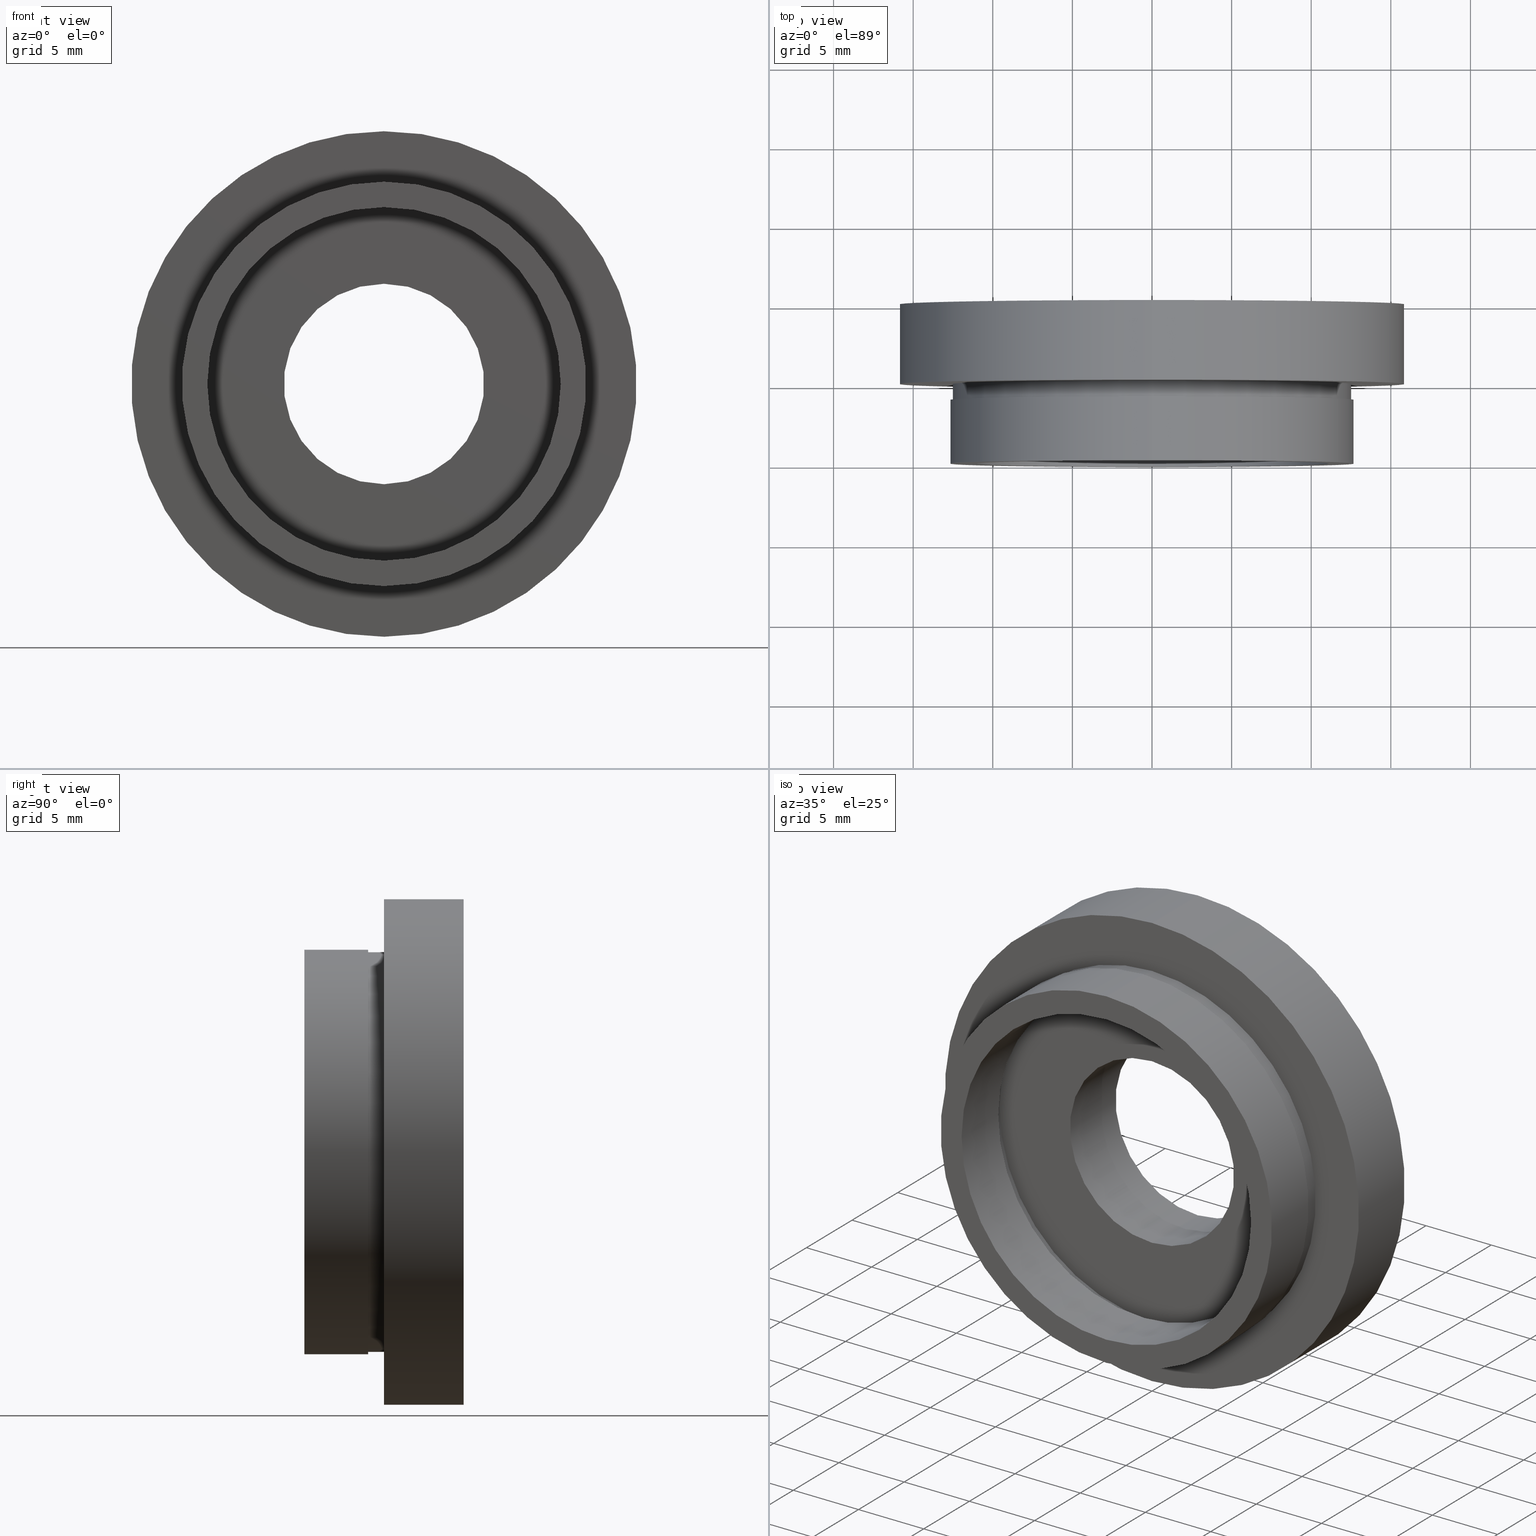
[diagram: canonical four-view strip — front | top / right | iso, engineering-drawing reading convention]
A machine part, canonical four-view strip (front | top / right | iso — engineering-drawing reading convention). The complete STEP part file that produces these views, byte-faithful:
ISO-10303-21;
HEADER;
FILE_DESCRIPTION (( 'STEP AP214' ),
    '1' );
FILE_NAME ('504135.STEP',
    '2019-10-11T01:25:29',
    ( 'user' ),
    ( '΢���й�' ),
    'SwSTEP 2.0',
    'SolidWorks 2016',
    '' );
FILE_SCHEMA (( 'AUTOMOTIVE_DESIGN' ));
ENDSEC;

DATA;
#1 =( NAMED_UNIT ( * ) PLANE_ANGLE_UNIT ( ) SI_UNIT ( $, .RADIAN. ) );
#2 = CARTESIAN_POINT ( 'NONE',  ( 0.0000000000000000000, 13.74468085106383300, 12.69999999999999900 ) ) ;
#3 = DIRECTION ( 'NONE',  ( -0.0000000000000000000, 1.000000000000000000, -0.0000000000000000000 ) ) ;
#4 = ADVANCED_FACE ( 'NONE', ( #280 ), #237, .T. ) ;
#5 = EDGE_LOOP ( 'NONE', ( #112, #111 ) ) ;
#6 = EDGE_CURVE ( 'NONE', #287, #382, #312, .T. ) ;
#7 = CARTESIAN_POINT ( 'NONE',  ( 0.0000000000000000000, 4.000000000000000000, 0.0000000000000000000 ) ) ;
#8 = AXIS2_PLACEMENT_3D ( 'NONE', #337, #441, #245 ) ;
#9 = CIRCLE ( 'NONE', #110, 6.295000000000001700 ) ;
#10 = EDGE_LOOP ( 'NONE', ( #330, #26 ) ) ;
#11 = VERTEX_POINT ( 'NONE', #174 ) ;
#12 = DIRECTION ( 'NONE',  ( 0.0000000000000000000, 0.0000000000000000000, 1.000000000000000000 ) ) ;
#13 = DIRECTION ( 'NONE',  ( -0.0000000000000000000, 1.000000000000000000, -0.0000000000000000000 ) ) ;
#14 = ADVANCED_FACE ( 'NONE', ( #554 ), #590, .T. ) ;
#15 = DIRECTION ( 'NONE',  ( 0.0000000000000000000, 0.0000000000000000000, 1.000000000000000000 ) ) ;
#16 = CARTESIAN_POINT ( 'NONE',  ( 0.0000000000000000000, 13.74468085106383300, 0.0000000000000000000 ) ) ;
#17 = EDGE_CURVE ( 'NONE', #327, #56, #314, .T. ) ;
#18 = PRESENTATION_LAYER_ASSIGNMENT (  '', '', ( #608 ) ) ;
#19 = DIRECTION ( 'NONE',  ( 0.0000000000000000000, 0.0000000000000000000, 1.000000000000000000 ) ) ;
#20 = EDGE_LOOP ( 'NONE', ( #86, #149 ) ) ;
#21 = FACE_OUTER_BOUND ( 'NONE', #494, .T. ) ;
#22 = AXIS2_PLACEMENT_3D ( 'NONE', #100, #147, #321 ) ;
#23 = CARTESIAN_POINT ( 'NONE',  ( 0.0000000000000000000, 13.74468085106383300, 11.70000000000000100 ) ) ;
#24 = CARTESIAN_POINT ( 'NONE',  ( 0.0000000000000000000, 0.0000000000000000000, 12.69999999999999900 ) ) ;
#25 = DIRECTION ( 'NONE',  ( -0.0000000000000000000, 1.000000000000000000, -0.0000000000000000000 ) ) ;
#26 = ORIENTED_EDGE ( 'NONE', *, *, #541, .T. ) ;
#27 = CIRCLE ( 'NONE', #72, 15.87500000000000000 ) ;
#28 = DIRECTION ( 'NONE',  ( 0.0000000000000000000, 0.0000000000000000000, 1.000000000000000000 ) ) ;
#29 =( NAMED_UNIT ( * ) PLANE_ANGLE_UNIT ( ) SI_UNIT ( $, .RADIAN. ) );
#30 = CARTESIAN_POINT ( 'NONE',  ( 0.0000000000000000000, 5.000000000000000900, 0.0000000000000000000 ) ) ;
#31 = EDGE_LOOP ( 'NONE', ( #67, #611, #545, #585 ) ) ;
#32 = PLANE ( 'NONE',  #579 ) ;
#33 = DIRECTION ( 'NONE',  ( -0.0000000000000000000, 1.000000000000000000, -0.0000000000000000000 ) ) ;
#34 = EDGE_CURVE ( 'NONE', #347, #388, #476, .T. ) ;
#35 = DIRECTION ( 'NONE',  ( -0.0000000000000000000, 1.000000000000000000, -0.0000000000000000000 ) ) ;
#36 = UNCERTAINTY_MEASURE_WITH_UNIT (LENGTH_MEASURE( 1.000000000000000100E-005 ), #350, 'distance_accuracy_value', 'NONE');
#37 = VERTEX_POINT ( 'NONE', #146 ) ;
#38 = AXIS2_PLACEMENT_3D ( 'NONE', #342, #398, #12 ) ;
#39 = ORIENTED_EDGE ( 'NONE', *, *, #586, .T. ) ;
#40 = CARTESIAN_POINT ( 'NONE',  ( 1.432836755002403300E-015, 13.74468085106383300, -11.70000000000000100 ) ) ;
#41 =( LENGTH_UNIT ( ) NAMED_UNIT ( * ) SI_UNIT ( .MILLI., .METRE. ) );
#42 =( NAMED_UNIT ( * ) PLANE_ANGLE_UNIT ( ) SI_UNIT ( $, .RADIAN. ) );
#43 = SURFACE_SIDE_STYLE ('',( #442 ) ) ;
#44 = VERTEX_POINT ( 'NONE', #482 ) ;
#45 = ORIENTED_EDGE ( 'NONE', *, *, #107, .F. ) ;
#46 = DIRECTION ( 'NONE',  ( -0.0000000000000000000, 1.000000000000000000, -0.0000000000000000000 ) ) ;
#47 = MECHANICAL_DESIGN_GEOMETRIC_PRESENTATION_REPRESENTATION (  '', ( #608 ), #83 ) ;
#48 = FACE_OUTER_BOUND ( 'NONE', #612, .T. ) ;
#49 = CYLINDRICAL_SURFACE ( 'NONE', #519, 15.87500000000000000 ) ;
#50 = CIRCLE ( 'NONE', #450, 12.55000000000000100 ) ;
#51 = ADVANCED_FACE ( 'NONE', ( #177 ), #618, .F. ) ;
#52 = CARTESIAN_POINT ( 'NONE',  ( 0.0000000000000000000, 0.0000000000000000000, 0.0000000000000000000 ) ) ;
#53 = AXIS2_PLACEMENT_3D ( 'NONE', #105, #129, #58 ) ;
#54 = DIRECTION ( 'NONE',  ( -0.0000000000000000000, 1.000000000000000000, -0.0000000000000000000 ) ) ;
#55 = CIRCLE ( 'NONE', #270, 6.295000000000001700 ) ;
#56 = VERTEX_POINT ( 'NONE', #487 ) ;
#57 = EDGE_CURVE ( 'NONE', #209, #347, #361, .T. ) ;
#58 = DIRECTION ( 'NONE',  ( 0.0000000000000000000, 0.0000000000000000000, 1.000000000000000000 ) ) ;
#59 = FACE_BOUND ( 'NONE', #10, .T. ) ;
#60 = DIRECTION ( 'NONE',  ( -0.0000000000000000000, 1.000000000000000000, 0.0000000000000000000 ) ) ;
#61 = CARTESIAN_POINT ( 'NONE',  ( 1.555301434917138400E-015, 4.000000000000000000, -12.69999999999999900 ) ) ;
#62 = AXIS2_PLACEMENT_3D ( 'NONE', #221, #567, #274 ) ;
#63 = ADVANCED_FACE ( 'NONE', ( #229, #119 ), #544, .F. ) ;
#64 = ORIENTED_EDGE ( 'NONE', *, *, #421, .F. ) ;
#65 = DIRECTION ( 'NONE',  ( 1.000000000000000000, 0.0000000000000000000, 0.0000000000000000000 ) ) ;
#66 = ORIENTED_EDGE ( 'NONE', *, *, #575, .T. ) ;
#67 = ORIENTED_EDGE ( 'NONE', *, *, #513, .T. ) ;
#68 = FACE_OUTER_BOUND ( 'NONE', #31, .T. ) ;
#69 = CARTESIAN_POINT ( 'NONE',  ( 0.0000000000000000000, 0.0000000000000000000, 0.0000000000000000000 ) ) ;
#70 =( NAMED_UNIT ( * ) SI_UNIT ( $, .STERADIAN. ) SOLID_ANGLE_UNIT ( ) );
#71 = EDGE_LOOP ( 'NONE', ( #492, #231 ) ) ;
#72 = AXIS2_PLACEMENT_3D ( 'NONE', #318, #488, #259 ) ;
#73 = FACE_OUTER_BOUND ( 'NONE', #294, .T. ) ;
#74 = CARTESIAN_POINT ( 'NONE',  ( 1.944126793646423200E-015, 13.74468085106383300, -15.87500000000000000 ) ) ;
#75 = CARTESIAN_POINT ( 'NONE',  ( 0.0000000000000000000, 13.74468085106383300, 0.0000000000000000000 ) ) ;
#76 = DIRECTION ( 'NONE',  ( 0.0000000000000000000, 0.0000000000000000000, 1.000000000000000000 ) ) ;
#77 = EDGE_CURVE ( 'NONE', #269, #475, #244, .T. ) ;
#78 = ORIENTED_EDGE ( 'NONE', *, *, #17, .T. ) ;
#79 =( NAMED_UNIT ( * ) SI_UNIT ( $, .STERADIAN. ) SOLID_ANGLE_UNIT ( ) );
#80 = PRESENTATION_STYLE_ASSIGNMENT (( #470 ) ) ;
#81 =( NAMED_UNIT ( * ) SI_UNIT ( $, .STERADIAN. ) SOLID_ANGLE_UNIT ( ) );
#82 = AXIS2_PLACEMENT_3D ( 'NONE', #392, #60, #340 ) ;
#83 =( GEOMETRIC_REPRESENTATION_CONTEXT ( 3 ) GLOBAL_UNCERTAINTY_ASSIGNED_CONTEXT ( ( #277 ) ) GLOBAL_UNIT_ASSIGNED_CONTEXT ( ( #285, #1, #70 ) ) REPRESENTATION_CONTEXT ( 'NONE', 'WORKASPACE' ) );
#84 = DIRECTION ( 'NONE',  ( 0.0000000000000000000, 0.0000000000000000000, 1.000000000000000000 ) ) ;
#85 = AXIS2_PLACEMENT_3D ( 'NONE', #604, #420, #414 ) ;
#86 = ORIENTED_EDGE ( 'NONE', *, *, #57, .T. ) ;
#87 = EDGE_LOOP ( 'NONE', ( #246, #407 ) ) ;
#88 = SURFACE_STYLE_FILL_AREA ( #405 ) ;
#89 = EDGE_CURVE ( 'NONE', #525, #472, #510, .T. ) ;
#90 = APPLICATION_PROTOCOL_DEFINITION ( 'draft international standard', 'automotive_design', 1998, #381 ) ;
#91 = AXIS2_PLACEMENT_3D ( 'NONE', #564, #419, #182 ) ;
#92 = ORIENTED_EDGE ( 'NONE', *, *, #371, .T. ) ;
#93 = DIRECTION ( 'NONE',  ( 0.0000000000000000000, 0.0000000000000000000, 1.000000000000000000 ) ) ;
#94 = SURFACE_STYLE_FILL_AREA ( #422 ) ;
#95 = DIRECTION ( 'NONE',  ( 0.0000000000000000000, 0.0000000000000000000, 1.000000000000000000 ) ) ;
#96 = ADVANCED_FACE ( 'NONE', ( #379, #262 ), #222, .F. ) ;
#97 = PRODUCT ( '504135', '504135', '', ( #400 ) ) ;
#98 = EDGE_CURVE ( 'NONE', #148, #472, #55, .T. ) ;
#99 = ORIENTED_EDGE ( 'NONE', *, *, #433, .T. ) ;
#100 = CARTESIAN_POINT ( 'NONE',  ( 12.55000000000000100, 4.000000000000000000, 0.0000000000000000000 ) ) ;
#101 = CIRCLE ( 'NONE', #619, 15.87500000000000000 ) ;
#102 = COLOUR_RGB ( '',1.000000000000000000, 1.000000000000000000, 1.000000000000000000 ) ;
#103 =( NAMED_UNIT ( * ) PLANE_ANGLE_UNIT ( ) SI_UNIT ( $, .RADIAN. ) );
#104 = AXIS2_PLACEMENT_3D ( 'NONE', #309, #25, #358 ) ;
#105 = CARTESIAN_POINT ( 'NONE',  ( 0.0000000000000000000, 0.0000000000000000000, 0.0000000000000000000 ) ) ;
#106 = ORIENTED_EDGE ( 'NONE', *, *, #541, .F. ) ;
#107 = EDGE_CURVE ( 'NONE', #292, #525, #9, .T. ) ;
#108 =( NAMED_UNIT ( * ) PLANE_ANGLE_UNIT ( ) SI_UNIT ( $, .RADIAN. ) );
#109 =( NAMED_UNIT ( * ) SI_UNIT ( $, .STERADIAN. ) SOLID_ANGLE_UNIT ( ) );
#110 = AXIS2_PLACEMENT_3D ( 'NONE', #183, #469, #133 ) ;
#111 = ORIENTED_EDGE ( 'NONE', *, *, #6, .F. ) ;
#112 = ORIENTED_EDGE ( 'NONE', *, *, #513, .F. ) ;
#113 = CIRCLE ( 'NONE', #125, 11.10000000000000100 ) ;
#114 = PRESENTATION_LAYER_ASSIGNMENT (  '', '', ( #613 ) ) ;
#115 = PRESENTATION_STYLE_ASSIGNMENT (( #417 ) ) ;
#116 = DIRECTION ( 'NONE',  ( -0.0000000000000000000, 1.000000000000000000, -0.0000000000000000000 ) ) ;
#117 = EDGE_CURVE ( 'NONE', #404, #522, #394, .T. ) ;
#118 = CARTESIAN_POINT ( 'NONE',  ( 12.69999999999999900, -3.918869757271530000E-016, 0.0000000000000000000 ) ) ;
#119 = FACE_OUTER_BOUND ( 'NONE', #20, .T. ) ;
#120 = EDGE_LOOP ( 'NONE', ( #459, #202, #570, #39 ) ) ;
#121 = DIRECTION ( 'NONE',  ( -0.0000000000000000000, 1.000000000000000000, -0.0000000000000000000 ) ) ;
#122 = ORIENTED_EDGE ( 'NONE', *, *, #143, .F. ) ;
#123 = VECTOR ( 'NONE', #46, 1000.000000000000000 ) ;
#124 = FILL_AREA_STYLE ('',( #389 ) ) ;
#125 = AXIS2_PLACEMENT_3D ( 'NONE', #256, #426, #341 ) ;
#126 = CYLINDRICAL_SURFACE ( 'NONE', #38, 11.10000000000000100 ) ;
#127 = CARTESIAN_POINT ( 'NONE',  ( 7.709151600632590500E-016, 10.00000000000000000, -6.295000000000001700 ) ) ;
#128 = CARTESIAN_POINT ( 'NONE',  ( 0.0000000000000000000, 4.000000000000000000, 11.10000000000000100 ) ) ;
#129 = DIRECTION ( 'NONE',  ( -0.0000000000000000000, 1.000000000000000000, -0.0000000000000000000 ) ) ;
#130 = DIRECTION ( 'NONE',  ( -0.0000000000000000000, 1.000000000000000000, -0.0000000000000000000 ) ) ;
#131 = DIRECTION ( 'NONE',  ( -0.0000000000000000000, 1.000000000000000000, -0.0000000000000000000 ) ) ;
#132 = ORIENTED_EDGE ( 'NONE', *, *, #575, .F. ) ;
#133 = DIRECTION ( 'NONE',  ( 0.0000000000000000000, 0.0000000000000000000, 1.000000000000000000 ) ) ;
#134 = ORIENTED_EDGE ( 'NONE', *, *, #555, .F. ) ;
#135 = SURFACE_SIDE_STYLE ('',( #94 ) ) ;
#136 = EDGE_CURVE ( 'NONE', #287, #327, #366, .T. ) ;
#137 = FACE_OUTER_BOUND ( 'NONE', #461, .T. ) ;
#138 = AXIS2_PLACEMENT_3D ( 'NONE', #509, #214, #557 ) ;
#139 = VECTOR ( 'NONE', #569, 1000.000000000000000 ) ;
#140 = ORIENTED_EDGE ( 'NONE', *, *, #444, .T. ) ;
#141 = SURFACE_STYLE_FILL_AREA ( #173 ) ;
#142 = DIRECTION ( 'NONE',  ( 0.0000000000000000000, 0.0000000000000000000, 1.000000000000000000 ) ) ;
#143 = EDGE_CURVE ( 'NONE', #322, #37, #50, .T. ) ;
#144 = CARTESIAN_POINT ( 'NONE',  ( 0.0000000000000000000, 13.74468085106383300, 11.10000000000000100 ) ) ;
#145 = FILL_AREA_STYLE_COLOUR ( '', #165 ) ;
#146 = CARTESIAN_POINT ( 'NONE',  ( 0.0000000000000000000, 4.000000000000000000, 12.55000000000000100 ) ) ;
#147 = DIRECTION ( 'NONE',  ( 0.0000000000000000000, -1.000000000000000000, 0.0000000000000000000 ) ) ;
#148 = VERTEX_POINT ( 'NONE', #216 ) ;
#149 = ORIENTED_EDGE ( 'NONE', *, *, #462, .T. ) ;
#150 = DIRECTION ( 'NONE',  ( -0.0000000000000000000, 1.000000000000000000, -0.0000000000000000000 ) ) ;
#151 = ADVANCED_FACE ( 'NONE', ( #179, #391 ), #32, .F. ) ;
#152 = PRODUCT_DEFINITION_CONTEXT ( 'detailed design', #344, 'design' ) ;
#153 = MECHANICAL_DESIGN_GEOMETRIC_PRESENTATION_REPRESENTATION (  '', ( #613 ), #186 ) ;
#154 = UNCERTAINTY_MEASURE_WITH_UNIT (LENGTH_MEASURE( 1.000000000000000100E-005 ), #447, 'distance_accuracy_value', 'NONE');
#155 = CARTESIAN_POINT ( 'NONE',  ( 0.0000000000000000000, 13.74468085106383300, 0.0000000000000000000 ) ) ;
#156 = FILL_AREA_STYLE_COLOUR ( '', #164 ) ;
#157 = DIRECTION ( 'NONE',  ( -0.0000000000000000000, 1.000000000000000000, -0.0000000000000000000 ) ) ;
#158 = CIRCLE ( 'NONE', #448, 12.69999999999999900 ) ;
#159 = CIRCLE ( 'NONE', #240, 12.55000000000000100 ) ;
#160 =( NAMED_UNIT ( * ) SI_UNIT ( $, .STERADIAN. ) SOLID_ANGLE_UNIT ( ) );
#161 = AXIS2_PLACEMENT_3D ( 'NONE', #155, #131, #142 ) ;
#162 = CARTESIAN_POINT ( 'NONE',  ( 0.0000000000000000000, 13.74468085106383300, 0.0000000000000000000 ) ) ;
#163 = ORIENTED_EDGE ( 'NONE', *, *, #267, .F. ) ;
#164 = COLOUR_RGB ( '',1.000000000000000000, 1.000000000000000000, 1.000000000000000000 ) ;
#165 = COLOUR_RGB ( '',1.000000000000000000, 1.000000000000000000, 1.000000000000000000 ) ;
#166 = FACE_OUTER_BOUND ( 'NONE', #550, .T. ) ;
#167 = STYLED_ITEM ( 'NONE', ( #594 ), #14 ) ;
#168 = ORIENTED_EDGE ( 'NONE', *, *, #423, .F. ) ;
#169 = ORIENTED_EDGE ( 'NONE', *, *, #502, .F. ) ;
#170 = AXIS2_PLACEMENT_3D ( 'NONE', #16, #157, #598 ) ;
#171 = UNCERTAINTY_MEASURE_WITH_UNIT (LENGTH_MEASURE( 1.000000000000000100E-005 ), #41, 'distance_accuracy_value', 'NONE');
#172 = DIRECTION ( 'NONE',  ( 0.0000000000000000000, 0.0000000000000000000, 1.000000000000000000 ) ) ;
#173 = FILL_AREA_STYLE ('',( #600 ) ) ;
#174 = CARTESIAN_POINT ( 'NONE',  ( 0.0000000000000000000, 5.000000000000000900, 11.70000000000000100 ) ) ;
#175 = AXIS2_PLACEMENT_3D ( 'NONE', #264, #150, #172 ) ;
#176 = DIRECTION ( 'NONE',  ( 0.0000000000000000000, -0.0000000000000000000, -1.000000000000000000 ) ) ;
#177 = FACE_OUTER_BOUND ( 'NONE', #120, .T. ) ;
#178 = ORIENTED_EDGE ( 'NONE', *, *, #555, .T. ) ;
#179 = FACE_OUTER_BOUND ( 'NONE', #602, .T. ) ;
#180 = PLANE ( 'NONE',  #22 ) ;
#181 = AXIS2_PLACEMENT_3D ( 'NONE', #227, #534, #65 ) ;
#182 = DIRECTION ( 'NONE',  ( 0.0000000000000000000, -0.0000000000000000000, -1.000000000000000000 ) ) ;
#183 = CARTESIAN_POINT ( 'NONE',  ( 0.0000000000000000000, 4.999999999999999100, 0.0000000000000000000 ) ) ;
#184 =( LENGTH_UNIT ( ) NAMED_UNIT ( * ) SI_UNIT ( .MILLI., .METRE. ) );
#185 = DIRECTION ( 'NONE',  ( -0.0000000000000000000, 1.000000000000000000, -0.0000000000000000000 ) ) ;
#186 =( GEOMETRIC_REPRESENTATION_CONTEXT ( 3 ) GLOBAL_UNCERTAINTY_ASSIGNED_CONTEXT ( ( #376 ) ) GLOBAL_UNIT_ASSIGNED_CONTEXT ( ( #385, #339, #189 ) ) REPRESENTATION_CONTEXT ( 'NONE', 'WORKASPACE' ) );
#187 = ORIENTED_EDGE ( 'NONE', *, *, #502, .T. ) ;
#188 = ORIENTED_EDGE ( 'NONE', *, *, #255, .T. ) ;
#189 =( NAMED_UNIT ( * ) SI_UNIT ( $, .STERADIAN. ) SOLID_ANGLE_UNIT ( ) );
#190 = STYLED_ITEM ( 'NONE', ( #80 ), #537 ) ;
#191 = CARTESIAN_POINT ( 'NONE',  ( 1.359357947053562400E-015, 4.000000000000000000, -11.10000000000000100 ) ) ;
#192 = ORIENTED_EDGE ( 'NONE', *, *, #143, .T. ) ;
#193 = SURFACE_SIDE_STYLE ('',( #498 ) ) ;
#194 = ORIENTED_EDGE ( 'NONE', *, *, #586, .F. ) ;
#195 = LINE ( 'NONE', #300, #338 ) ;
#196 = SURFACE_STYLE_FILL_AREA ( #460 ) ;
#197 = ADVANCED_FACE ( 'NONE', ( #308, #137 ), #180, .F. ) ;
#198 = DIRECTION ( 'NONE',  ( 0.0000000000000000000, 0.0000000000000000000, 1.000000000000000000 ) ) ;
#199 = VERTEX_POINT ( 'NONE', #436 ) ;
#200 = DIRECTION ( 'NONE',  ( -0.0000000000000000000, 1.000000000000000000, -0.0000000000000000000 ) ) ;
#201 = COLOUR_RGB ( '',1.000000000000000000, 1.000000000000000000, 1.000000000000000000 ) ;
#202 = ORIENTED_EDGE ( 'NONE', *, *, #57, .F. ) ;
#203 = VERTEX_POINT ( 'NONE', #479 ) ;
#204 = CARTESIAN_POINT ( 'NONE',  ( 0.0000000000000000000, 13.74468085106383300, 15.87500000000000000 ) ) ;
#205 = LINE ( 'NONE', #566, #375 ) ;
#206 = DIRECTION ( 'NONE',  ( 0.0000000000000000000, 0.0000000000000000000, 1.000000000000000000 ) ) ;
#207 = PRODUCT_DEFINITION ( 'δ֪', '', #235, #152 ) ;
#208 = EDGE_LOOP ( 'NONE', ( #106, #372, #453, #582 ) ) ;
#209 = VERTEX_POINT ( 'NONE', #331 ) ;
#210 = AXIS2_PLACEMENT_3D ( 'NONE', #30, #364, #198 ) ;
#211 = EDGE_LOOP ( 'NONE', ( #523, #192, #66, #324 ) ) ;
#212 = UNCERTAINTY_MEASURE_WITH_UNIT (LENGTH_MEASURE( 1.000000000000000100E-005 ), #184, 'distance_accuracy_value', 'NONE');
#213 = PRESENTATION_STYLE_ASSIGNMENT (( #301 ) ) ;
#214 = DIRECTION ( 'NONE',  ( -0.0000000000000000000, 1.000000000000000000, -0.0000000000000000000 ) ) ;
#215 = DIRECTION ( 'NONE',  ( -0.0000000000000000000, 1.000000000000000000, 0.0000000000000000000 ) ) ;
#216 = CARTESIAN_POINT ( 'NONE',  ( 0.0000000000000000000, 10.00000000000000000, 6.295000000000001700 ) ) ;
#217 = SURFACE_STYLE_USAGE ( .BOTH. , #515 ) ;
#218 = PRESENTATION_LAYER_ASSIGNMENT (  '', '', ( #190 ) ) ;
#219 = ORIENTED_EDGE ( 'NONE', *, *, #267, .T. ) ;
#220 = DIRECTION ( 'NONE',  ( -0.0000000000000000000, 1.000000000000000000, -0.0000000000000000000 ) ) ;
#221 = CARTESIAN_POINT ( 'NONE',  ( 0.0000000000000000000, 0.0000000000000000000, 0.0000000000000000000 ) ) ;
#222 = PLANE ( 'NONE',  #82 ) ;
#223 = ORIENTED_EDGE ( 'NONE', *, *, #89, .T. ) ;
#224 =( NAMED_UNIT ( * ) SI_UNIT ( $, .STERADIAN. ) SOLID_ANGLE_UNIT ( ) );
#225 = COLOUR_RGB ( '',1.000000000000000000, 1.000000000000000000, 1.000000000000000000 ) ;
#226 = VECTOR ( 'NONE', #13, 1000.000000000000000 ) ;
#227 = CARTESIAN_POINT ( 'NONE',  ( 0.0000000000000000000, 0.0000000000000000000, 0.0000000000000000000 ) ) ;
#228 = AXIS2_PLACEMENT_3D ( 'NONE', #412, #121, #456 ) ;
#229 = FACE_BOUND ( 'NONE', #402, .T. ) ;
#230 = ORIENTED_EDGE ( 'NONE', *, *, #474, .T. ) ;
#231 = ORIENTED_EDGE ( 'NONE', *, *, #568, .T. ) ;
#232 = ORIENTED_EDGE ( 'NONE', *, *, #77, .T. ) ;
#233 = CIRCLE ( 'NONE', #138, 15.87500000000000000 ) ;
#234 = AXIS2_PLACEMENT_3D ( 'NONE', #286, #516, #76 ) ;
#235 = PRODUCT_DEFINITION_FORMATION_WITH_SPECIFIED_SOURCE ( '�κ�', '', #97, .NOT_KNOWN. ) ;
#236 = ADVANCED_FACE ( 'NONE', ( #21 ), #443, .T. ) ;
#237 = CYLINDRICAL_SURFACE ( 'NONE', #234, 12.55000000000000100 ) ;
#238 = VERTEX_POINT ( 'NONE', #431 ) ;
#239 = FACE_BOUND ( 'NONE', #87, .T. ) ;
#240 = AXIS2_PLACEMENT_3D ( 'NONE', #7, #387, #95 ) ;
#241 = DIRECTION ( 'NONE',  ( -0.0000000000000000000, 1.000000000000000000, -0.0000000000000000000 ) ) ;
#242 = SURFACE_SIDE_STYLE ('',( #574 ) ) ;
#243 = EDGE_CURVE ( 'NONE', #269, #438, #289, .T. ) ;
#244 = LINE ( 'NONE', #144, #458 ) ;
#245 = DIRECTION ( 'NONE',  ( 0.0000000000000000000, 0.0000000000000000000, 1.000000000000000000 ) ) ;
#246 = ORIENTED_EDGE ( 'NONE', *, *, #98, .F. ) ;
#247 = ORIENTED_EDGE ( 'NONE', *, *, #6, .T. ) ;
#248 = CYLINDRICAL_SURFACE ( 'NONE', #386, 12.69999999999999900 ) ;
#249 = FILL_AREA_STYLE_COLOUR ( '', #102 ) ;
#250 = ADVANCED_FACE ( 'NONE', ( #418 ), #552, .F. ) ;
#251 = MECHANICAL_DESIGN_GEOMETRIC_PRESENTATION_REPRESENTATION (  '', ( #190 ), #284 ) ;
#252 = DIRECTION ( 'NONE',  ( -0.0000000000000000000, 1.000000000000000000, -0.0000000000000000000 ) ) ;
#253 = CARTESIAN_POINT ( 'NONE',  ( 0.0000000000000000000, 4.999999999999999100, 6.295000000000001700 ) ) ;
#254 = CARTESIAN_POINT ( 'NONE',  ( 0.0000000000000000000, 5.000000000000000900, 0.0000000000000000000 ) ) ;
#255 = EDGE_CURVE ( 'NONE', #37, #322, #159, .T. ) ;
#256 = CARTESIAN_POINT ( 'NONE',  ( 0.0000000000000000000, 4.000000000000000000, 0.0000000000000000000 ) ) ;
#257 = EDGE_LOOP ( 'NONE', ( #373, #230, #396, #425 ) ) ;
#258 = ADVANCED_BREP_SHAPE_REPRESENTATION ( '504135', ( #468, #181 ), #551 ) ;
#259 = DIRECTION ( 'NONE',  ( 0.0000000000000000000, 0.0000000000000000000, 1.000000000000000000 ) ) ;
#260 = DIRECTION ( 'NONE',  ( -0.0000000000000000000, 1.000000000000000000, -0.0000000000000000000 ) ) ;
#261 = DIRECTION ( 'NONE',  ( -0.0000000000000000000, 1.000000000000000000, -0.0000000000000000000 ) ) ;
#262 = FACE_BOUND ( 'NONE', #452, .T. ) ;
#263 = AXIS2_PLACEMENT_3D ( 'NONE', #118, #215, #559 ) ;
#264 = CARTESIAN_POINT ( 'NONE',  ( 0.0000000000000000000, 4.000000000000000000, 0.0000000000000000000 ) ) ;
#265 = LINE ( 'NONE', #74, #558 ) ;
#266 =( NAMED_UNIT ( * ) PLANE_ANGLE_UNIT ( ) SI_UNIT ( $, .RADIAN. ) );
#267 = EDGE_CURVE ( 'NONE', #44, #238, #485, .T. ) ;
#268 = SURFACE_SIDE_STYLE ('',( #196 ) ) ;
#269 = VERTEX_POINT ( 'NONE', #562 ) ;
#270 = AXIS2_PLACEMENT_3D ( 'NONE', #297, #200, #527 ) ;
#271 = CARTESIAN_POINT ( 'NONE',  ( 11.70000000000000100, 4.999999999999999100, 0.0000000000000000000 ) ) ;
#272 = ORIENTED_EDGE ( 'NONE', *, *, #279, .T. ) ;
#273 = PRODUCT_RELATED_PRODUCT_CATEGORY ( 'part', '', ( #97 ) ) ;
#274 = DIRECTION ( 'NONE',  ( 0.0000000000000000000, 0.0000000000000000000, 1.000000000000000000 ) ) ;
#275 = AXIS2_PLACEMENT_3D ( 'NONE', #466, #393, #311 ) ;
#276 = ORIENTED_EDGE ( 'NONE', *, *, #595, .T. ) ;
#277 = UNCERTAINTY_MEASURE_WITH_UNIT (LENGTH_MEASURE( 1.000000000000000100E-005 ), #285, 'distance_accuracy_value', 'NONE');
#278 = EDGE_LOOP ( 'NONE', ( #188, #471, #163, #132 ) ) ;
#279 = EDGE_CURVE ( 'NONE', #382, #56, #530, .T. ) ;
#280 = FACE_OUTER_BOUND ( 'NONE', #211, .T. ) ;
#281 = VECTOR ( 'NONE', #116, 1000.000000000000000 ) ;
#282 = AXIS2_PLACEMENT_3D ( 'NONE', #435, #507, #606 ) ;
#283 = CARTESIAN_POINT ( 'NONE',  ( 0.0000000000000000000, 4.000000000000000000, 0.0000000000000000000 ) ) ;
#284 =( GEOMETRIC_REPRESENTATION_CONTEXT ( 3 ) GLOBAL_UNCERTAINTY_ASSIGNED_CONTEXT ( ( #212 ) ) GLOBAL_UNIT_ASSIGNED_CONTEXT ( ( #184, #529, #224 ) ) REPRESENTATION_CONTEXT ( 'NONE', 'WORKASPACE' ) );
#285 =( LENGTH_UNIT ( ) NAMED_UNIT ( * ) SI_UNIT ( .MILLI., .METRE. ) );
#286 = CARTESIAN_POINT ( 'NONE',  ( 0.0000000000000000000, 13.74468085106383300, 0.0000000000000000000 ) ) ;
#287 = VERTEX_POINT ( 'NONE', #293 ) ;
#288 = PRODUCT_DEFINITION_SHAPE ( 'NONE', 'NONE',  #207 ) ;
#289 = CIRCLE ( 'NONE', #53, 11.10000000000000100 ) ;
#290 = ADVANCED_FACE ( 'NONE', ( #432 ), #489, .F. ) ;
#291 = CARTESIAN_POINT ( 'NONE',  ( 0.0000000000000000000, 13.74468085106383300, 0.0000000000000000000 ) ) ;
#292 = VERTEX_POINT ( 'NONE', #253 ) ;
#293 = CARTESIAN_POINT ( 'NONE',  ( 1.555301434917138400E-015, 0.0000000000000000000, -12.69999999999999900 ) ) ;
#294 = EDGE_LOOP ( 'NONE', ( #536, #538, #232, #187 ) ) ;
#295 = FACE_OUTER_BOUND ( 'NONE', #5, .T. ) ;
#296 = STYLED_ITEM ( 'NONE', ( #517 ), #446 ) ;
#297 = CARTESIAN_POINT ( 'NONE',  ( 0.0000000000000000000, 10.00000000000000000, 0.0000000000000000000 ) ) ;
#298 = CARTESIAN_POINT ( 'NONE',  ( 1.432836755002403300E-015, 4.000000000000000000, -11.70000000000000100 ) ) ;
#299 = APPLICATION_PROTOCOL_DEFINITION ( 'draft international standard', 'automotive_design', 1998, #344 ) ;
#300 = CARTESIAN_POINT ( 'NONE',  ( 1.359357947053562400E-015, 13.74468085106383300, -11.10000000000000100 ) ) ;
#301 = SURFACE_STYLE_USAGE ( .BOTH. , #587 ) ;
#302 = CIRCLE ( 'NONE', #415, 6.295000000000001700 ) ;
#303 = FILL_AREA_STYLE ('',( #316 ) ) ;
#304 = STYLED_ITEM ( 'NONE', ( #622 ), #290 ) ;
#305 = ORIENTED_EDGE ( 'NONE', *, *, #474, .F. ) ;
#306 = DIRECTION ( 'NONE',  ( -0.0000000000000000000, 1.000000000000000000, -0.0000000000000000000 ) ) ;
#307 = ORIENTED_EDGE ( 'NONE', *, *, #136, .F. ) ;
#308 = FACE_BOUND ( 'NONE', #581, .T. ) ;
#309 = CARTESIAN_POINT ( 'NONE',  ( 0.0000000000000000000, 4.000000000000000000, 0.0000000000000000000 ) ) ;
#310 = EDGE_CURVE ( 'NONE', #292, #148, #355, .T. ) ;
#311 = DIRECTION ( 'NONE',  ( 0.0000000000000000000, 0.0000000000000000000, 1.000000000000000000 ) ) ;
#312 = CIRCLE ( 'NONE', #380, 12.69999999999999900 ) ;
#313 = AXIS2_PLACEMENT_3D ( 'NONE', #254, #130, #467 ) ;
#314 = CIRCLE ( 'NONE', #175, 12.69999999999999900 ) ;
#315 =( LENGTH_UNIT ( ) NAMED_UNIT ( * ) SI_UNIT ( .MILLI., .METRE. ) );
#316 = FILL_AREA_STYLE_COLOUR ( '', #383 ) ;
#317 = VECTOR ( 'NONE', #33, 1000.000000000000000 ) ;
#318 = CARTESIAN_POINT ( 'NONE',  ( 0.0000000000000000000, 10.00000000000000000, 0.0000000000000000000 ) ) ;
#319 = CARTESIAN_POINT ( 'NONE',  ( 0.0000000000000000000, 4.000000000000000000, 0.0000000000000000000 ) ) ;
#320 = CARTESIAN_POINT ( 'NONE',  ( 0.0000000000000000000, 13.74468085106383300, 0.0000000000000000000 ) ) ;
#321 = DIRECTION ( 'NONE',  ( 0.0000000000000000000, -0.0000000000000000000, -1.000000000000000000 ) ) ;
#322 = VERTEX_POINT ( 'NONE', #346 ) ;
#323 = EDGE_CURVE ( 'NONE', #438, #592, #195, .T. ) ;
#324 = ORIENTED_EDGE ( 'NONE', *, *, #444, .F. ) ;
#325 = CARTESIAN_POINT ( 'NONE',  ( 11.10000000000000100, 4.000000000000000000, 0.0000000000000000000 ) ) ;
#326 = PRESENTATION_LAYER_ASSIGNMENT (  '', '', ( #296 ) ) ;
#327 = VERTEX_POINT ( 'NONE', #61 ) ;
#328 =( LENGTH_UNIT ( ) NAMED_UNIT ( * ) SI_UNIT ( .MILLI., .METRE. ) );
#329 = FILL_AREA_STYLE ('',( #145 ) ) ;
#330 = ORIENTED_EDGE ( 'NONE', *, *, #243, .T. ) ;
#331 = CARTESIAN_POINT ( 'NONE',  ( 0.0000000000000000000, 4.000000000000000000, 11.70000000000000100 ) ) ;
#332 = ADVANCED_FACE ( 'NONE', ( #73 ), #126, .F. ) ;
#333 = VECTOR ( 'NONE', #588, 1000.000000000000000 ) ;
#334 = CARTESIAN_POINT ( 'NONE',  ( 1.432836755002403300E-015, 5.000000000000000900, -11.70000000000000100 ) ) ;
#335 = PRESENTATION_LAYER_ASSIGNMENT (  '', '', ( #304 ) ) ;
#336 = DIRECTION ( 'NONE',  ( -0.0000000000000000000, 1.000000000000000000, -0.0000000000000000000 ) ) ;
#337 = CARTESIAN_POINT ( 'NONE',  ( 0.0000000000000000000, 10.00000000000000000, 0.0000000000000000000 ) ) ;
#338 = VECTOR ( 'NONE', #495, 1000.000000000000000 ) ;
#339 =( NAMED_UNIT ( * ) PLANE_ANGLE_UNIT ( ) SI_UNIT ( $, .RADIAN. ) );
#340 = DIRECTION ( 'NONE',  ( 0.0000000000000000000, 0.0000000000000000000, 1.000000000000000000 ) ) ;
#341 = DIRECTION ( 'NONE',  ( 0.0000000000000000000, 0.0000000000000000000, 1.000000000000000000 ) ) ;
#342 = CARTESIAN_POINT ( 'NONE',  ( 0.0000000000000000000, 13.74468085106383300, 0.0000000000000000000 ) ) ;
#343 = EDGE_LOOP ( 'NONE', ( #532, #305 ) ) ;
#344 = APPLICATION_CONTEXT ( 'automotive_design' ) ;
#345 = EDGE_LOOP ( 'NONE', ( #416, #45, #556, #363 ) ) ;
#346 = CARTESIAN_POINT ( 'NONE',  ( 1.536931732929928400E-015, 4.000000000000000000, -12.55000000000000100 ) ) ;
#347 = VERTEX_POINT ( 'NONE', #298 ) ;
#348 = AXIS2_PLACEMENT_3D ( 'NONE', #283, #35, #583 ) ;
#349 = AXIS2_PLACEMENT_3D ( 'NONE', #69, #351, #19 ) ;
#350 =( LENGTH_UNIT ( ) NAMED_UNIT ( * ) SI_UNIT ( .MILLI., .METRE. ) );
#351 = DIRECTION ( 'NONE',  ( -0.0000000000000000000, 1.000000000000000000, -0.0000000000000000000 ) ) ;
#352 = EDGE_CURVE ( 'NONE', #472, #148, #535, .T. ) ;
#353 = ORIENTED_EDGE ( 'NONE', *, *, #462, .F. ) ;
#354 = EDGE_CURVE ( 'NONE', #404, #203, #399, .T. ) ;
#355 = LINE ( 'NONE', #547, #226 ) ;
#356 = CARTESIAN_POINT ( 'NONE',  ( 0.0000000000000000000, 5.000000000000000900, 15.87500000000000000 ) ) ;
#357 = CARTESIAN_POINT ( 'NONE',  ( 0.0000000000000000000, 5.000000000000000900, 0.0000000000000000000 ) ) ;
#358 = DIRECTION ( 'NONE',  ( 0.0000000000000000000, 0.0000000000000000000, 1.000000000000000000 ) ) ;
#359 = SURFACE_SIDE_STYLE ('',( #571 ) ) ;
#360 = MECHANICAL_DESIGN_GEOMETRIC_PRESENTATION_REPRESENTATION (  '', ( #296 ), #395 ) ;
#361 = CIRCLE ( 'NONE', #348, 11.70000000000000100 ) ;
#362 = DIRECTION ( 'NONE',  ( -0.0000000000000000000, 1.000000000000000000, -0.0000000000000000000 ) ) ;
#363 = ORIENTED_EDGE ( 'NONE', *, *, #98, .T. ) ;
#364 = DIRECTION ( 'NONE',  ( -0.0000000000000000000, 1.000000000000000000, -0.0000000000000000000 ) ) ;
#365 = EDGE_LOOP ( 'NONE', ( #505, #223, #503, #577 ) ) ;
#366 = LINE ( 'NONE', #512, #463 ) ;
#367 = FILL_AREA_STYLE_COLOUR ( '', #615 ) ;
#368 = CIRCLE ( 'NONE', #104, 11.10000000000000100 ) ;
#369 = DIRECTION ( 'NONE',  ( -0.0000000000000000000, 1.000000000000000000, -0.0000000000000000000 ) ) ;
#370 = CARTESIAN_POINT ( 'NONE',  ( 0.0000000000000000000, 5.000000000000000900, 0.0000000000000000000 ) ) ;
#371 = EDGE_CURVE ( 'NONE', #199, #522, #27, .T. ) ;
#372 = ORIENTED_EDGE ( 'NONE', *, *, #323, .T. ) ;
#373 = ORIENTED_EDGE ( 'NONE', *, *, #433, .F. ) ;
#374 = CARTESIAN_POINT ( 'NONE',  ( 0.0000000000000000000, 13.74468085106383300, 0.0000000000000000000 ) ) ;
#375 = VECTOR ( 'NONE', #252, 1000.000000000000000 ) ;
#376 = UNCERTAINTY_MEASURE_WITH_UNIT (LENGTH_MEASURE( 1.000000000000000100E-005 ), #385, 'distance_accuracy_value', 'NONE');
#377 = CYLINDRICAL_SURFACE ( 'NONE', #170, 12.55000000000000100 ) ;
#378 = MECHANICAL_DESIGN_GEOMETRIC_PRESENTATION_REPRESENTATION (  '', ( #304 ), #406 ) ;
#379 = FACE_OUTER_BOUND ( 'NONE', #343, .T. ) ;
#380 = AXIS2_PLACEMENT_3D ( 'NONE', #52, #3, #457 ) ;
#381 = APPLICATION_CONTEXT ( 'automotive_design' ) ;
#382 = VERTEX_POINT ( 'NONE', #24 ) ;
#383 = COLOUR_RGB ( '',1.000000000000000000, 1.000000000000000000, 1.000000000000000000 ) ;
#384 = CIRCLE ( 'NONE', #62, 12.69999999999999900 ) ;
#385 =( LENGTH_UNIT ( ) NAMED_UNIT ( * ) SI_UNIT ( .MILLI., .METRE. ) );
#386 = AXIS2_PLACEMENT_3D ( 'NONE', #320, #241, #542 ) ;
#387 = DIRECTION ( 'NONE',  ( -0.0000000000000000000, 1.000000000000000000, -0.0000000000000000000 ) ) ;
#388 = VERTEX_POINT ( 'NONE', #334 ) ;
#389 = FILL_AREA_STYLE_COLOUR ( '', #225 ) ;
#390 = ADVANCED_FACE ( 'NONE', ( #623 ), #377, .T. ) ;
#391 = FACE_BOUND ( 'NONE', #71, .T. ) ;
#392 = CARTESIAN_POINT ( 'NONE',  ( 15.87500000000000000, 5.000000000000000900, 0.0000000000000000000 ) ) ;
#393 = DIRECTION ( 'NONE',  ( -0.0000000000000000000, 1.000000000000000000, -0.0000000000000000000 ) ) ;
#394 = LINE ( 'NONE', #204, #333 ) ;
#395 =( GEOMETRIC_REPRESENTATION_CONTEXT ( 3 ) GLOBAL_UNCERTAINTY_ASSIGNED_CONTEXT ( ( #440 ) ) GLOBAL_UNIT_ASSIGNED_CONTEXT ( ( #561, #266, #603 ) ) REPRESENTATION_CONTEXT ( 'NONE', 'WORKASPACE' ) );
#396 = ORIENTED_EDGE ( 'NONE', *, *, #117, .T. ) ;
#397 = CIRCLE ( 'NONE', #455, 11.70000000000000100 ) ;
#398 = DIRECTION ( 'NONE',  ( -0.0000000000000000000, 1.000000000000000000, -0.0000000000000000000 ) ) ;
#399 = CIRCLE ( 'NONE', #599, 15.87500000000000000 ) ;
#400 = PRODUCT_CONTEXT ( 'NONE', #381, 'mechanical' ) ;
#401 =( NAMED_UNIT ( * ) PLANE_ANGLE_UNIT ( ) SI_UNIT ( $, .RADIAN. ) );
#402 = EDGE_LOOP ( 'NONE', ( #169, #64 ) ) ;
#403 = CARTESIAN_POINT ( 'NONE',  ( 0.0000000000000000000, 4.999999999999999100, 0.0000000000000000000 ) ) ;
#404 = VERTEX_POINT ( 'NONE', #356 ) ;
#405 = FILL_AREA_STYLE ('',( #249 ) ) ;
#406 =( GEOMETRIC_REPRESENTATION_CONTEXT ( 3 ) GLOBAL_UNCERTAINTY_ASSIGNED_CONTEXT ( ( #36 ) ) GLOBAL_UNIT_ASSIGNED_CONTEXT ( ( #350, #401, #109 ) ) REPRESENTATION_CONTEXT ( 'NONE', 'WORKASPACE' ) );
#407 = ORIENTED_EDGE ( 'NONE', *, *, #352, .F. ) ;
#408 = CARTESIAN_POINT ( 'NONE',  ( 1.359357947053562400E-015, 0.0000000000000000000, -11.10000000000000100 ) ) ;
#409 = FACE_OUTER_BOUND ( 'NONE', #257, .T. ) ;
#410 = FACE_OUTER_BOUND ( 'NONE', #208, .T. ) ;
#411 = EDGE_CURVE ( 'NONE', #522, #199, #233, .T. ) ;
#412 = CARTESIAN_POINT ( 'NONE',  ( 0.0000000000000000000, 5.000000000000000900, 0.0000000000000000000 ) ) ;
#413 = AXIS2_PLACEMENT_3D ( 'NONE', #291, #336, #539 ) ;
#414 = DIRECTION ( 'NONE',  ( 0.0000000000000000000, 0.0000000000000000000, 1.000000000000000000 ) ) ;
#415 = AXIS2_PLACEMENT_3D ( 'NONE', #403, #451, #15 ) ;
#416 = ORIENTED_EDGE ( 'NONE', *, *, #89, .F. ) ;
#417 = SURFACE_STYLE_USAGE ( .BOTH. , #242 ) ;
#418 = FACE_OUTER_BOUND ( 'NONE', #365, .T. ) ;
#419 = DIRECTION ( 'NONE',  ( 0.0000000000000000000, -1.000000000000000000, 0.0000000000000000000 ) ) ;
#420 = DIRECTION ( 'NONE',  ( -0.0000000000000000000, 1.000000000000000000, -0.0000000000000000000 ) ) ;
#421 = EDGE_CURVE ( 'NONE', #592, #475, #368, .T. ) ;
#422 = FILL_AREA_STYLE ('',( #610 ) ) ;
#423 = EDGE_CURVE ( 'NONE', #209, #11, #501, .T. ) ;
#424 = CLOSED_SHELL ( 'NONE', ( #537, #390, #236, #250, #499, #446, #332, #63, #51, #151, #290, #481, #578, #96, #4, #197, #14, #434 ) ) ;
#425 = ORIENTED_EDGE ( 'NONE', *, *, #371, .F. ) ;
#426 = DIRECTION ( 'NONE',  ( -0.0000000000000000000, 1.000000000000000000, -0.0000000000000000000 ) ) ;
#427 = CIRCLE ( 'NONE', #228, 12.55000000000000100 ) ;
#428 = STYLED_ITEM ( 'NONE', ( #500 ), #468 ) ;
#429 = SURFACE_STYLE_USAGE ( .BOTH. , #43 ) ;
#430 = ORIENTED_EDGE ( 'NONE', *, *, #411, .T. ) ;
#431 = CARTESIAN_POINT ( 'NONE',  ( 1.536931732929928400E-015, 5.000000000000000900, -12.55000000000000100 ) ) ;
#432 = FACE_OUTER_BOUND ( 'NONE', #345, .T. ) ;
#433 = EDGE_CURVE ( 'NONE', #203, #199, #265, .T. ) ;
#434 = ADVANCED_FACE ( 'NONE', ( #295, #59 ), #511, .F. ) ;
#435 = CARTESIAN_POINT ( 'NONE',  ( 0.0000000000000000000, 13.74468085106383300, 0.0000000000000000000 ) ) ;
#436 = CARTESIAN_POINT ( 'NONE',  ( 1.944126793646423200E-015, 10.00000000000000000, -15.87500000000000000 ) ) ;
#437 = DIRECTION ( 'NONE',  ( 0.0000000000000000000, 0.0000000000000000000, 1.000000000000000000 ) ) ;
#438 = VERTEX_POINT ( 'NONE', #408 ) ;
#439 = PRESENTATION_LAYER_ASSIGNMENT (  '', '', ( #473 ) ) ;
#440 = UNCERTAINTY_MEASURE_WITH_UNIT (LENGTH_MEASURE( 1.000000000000000100E-005 ), #561, 'distance_accuracy_value', 'NONE');
#441 = DIRECTION ( 'NONE',  ( -0.0000000000000000000, 1.000000000000000000, -0.0000000000000000000 ) ) ;
#442 = SURFACE_STYLE_FILL_AREA ( #329 ) ;
#443 = CYLINDRICAL_SURFACE ( 'NONE', #85, 15.87500000000000000 ) ;
#444 = EDGE_CURVE ( 'NONE', #238, #44, #427, .T. ) ;
#445 = FILL_AREA_STYLE ('',( #156 ) ) ;
#446 = ADVANCED_FACE ( 'NONE', ( #410 ), #597, .F. ) ;
#447 =( LENGTH_UNIT ( ) NAMED_UNIT ( * ) SI_UNIT ( .MILLI., .METRE. ) );
#448 = AXIS2_PLACEMENT_3D ( 'NONE', #490, #584, #93 ) ;
#449 = SURFACE_STYLE_USAGE ( .BOTH. , #193 ) ;
#450 = AXIS2_PLACEMENT_3D ( 'NONE', #319, #609, #546 ) ;
#451 = DIRECTION ( 'NONE',  ( -0.0000000000000000000, 1.000000000000000000, -0.0000000000000000000 ) ) ;
#452 = EDGE_LOOP ( 'NONE', ( #219, #140 ) ) ;
#453 = ORIENTED_EDGE ( 'NONE', *, *, #421, .T. ) ;
#454 = SURFACE_STYLE_USAGE ( .BOTH. , #359 ) ;
#455 = AXIS2_PLACEMENT_3D ( 'NONE', #518, #220, #563 ) ;
#456 = DIRECTION ( 'NONE',  ( 0.0000000000000000000, 0.0000000000000000000, 1.000000000000000000 ) ) ;
#457 = DIRECTION ( 'NONE',  ( 0.0000000000000000000, 0.0000000000000000000, 1.000000000000000000 ) ) ;
#458 = VECTOR ( 'NONE', #261, 1000.000000000000000 ) ;
#459 = ORIENTED_EDGE ( 'NONE', *, *, #34, .F. ) ;
#460 = FILL_AREA_STYLE ('',( #367 ) ) ;
#461 = EDGE_LOOP ( 'NONE', ( #276, #78 ) ) ;
#462 = EDGE_CURVE ( 'NONE', #347, #209, #397, .T. ) ;
#463 = VECTOR ( 'NONE', #185, 1000.000000000000000 ) ;
#464 = CYLINDRICAL_SURFACE ( 'NONE', #161, 11.70000000000000100 ) ;
#465 = PLANE ( 'NONE',  #91 ) ;
#466 = CARTESIAN_POINT ( 'NONE',  ( 0.0000000000000000000, 13.74468085106383300, 0.0000000000000000000 ) ) ;
#467 = DIRECTION ( 'NONE',  ( 0.0000000000000000000, 0.0000000000000000000, 1.000000000000000000 ) ) ;
#468 = MANIFOLD_SOLID_BREP ( '��ת1', #424 ) ;
#469 = DIRECTION ( 'NONE',  ( -0.0000000000000000000, 1.000000000000000000, -0.0000000000000000000 ) ) ;
#470 = SURFACE_STYLE_USAGE ( .BOTH. , #135 ) ;
#471 = ORIENTED_EDGE ( 'NONE', *, *, #531, .T. ) ;
#472 = VERTEX_POINT ( 'NONE', #127 ) ;
#473 = STYLED_ITEM ( 'NONE', ( #213 ), #332 ) ;
#474 = EDGE_CURVE ( 'NONE', #203, #404, #101, .T. ) ;
#475 = VERTEX_POINT ( 'NONE', #128 ) ;
#476 = LINE ( 'NONE', #40, #491 ) ;
#477 = DIRECTION ( 'NONE',  ( -0.0000000000000000000, 1.000000000000000000, -0.0000000000000000000 ) ) ;
#478 = LINE ( 'NONE', #524, #317 ) ;
#479 = CARTESIAN_POINT ( 'NONE',  ( 1.944126793646423200E-015, 5.000000000000000900, -15.87500000000000000 ) ) ;
#480 = AXIS2_PLACEMENT_3D ( 'NONE', #573, #617, #576 ) ;
#481 = ADVANCED_FACE ( 'NONE', ( #239, #48 ), #465, .F. ) ;
#482 = CARTESIAN_POINT ( 'NONE',  ( 0.0000000000000000000, 5.000000000000000900, 12.55000000000000100 ) ) ;
#483 = ORIENTED_EDGE ( 'NONE', *, *, #255, .F. ) ;
#484 = ORIENTED_EDGE ( 'NONE', *, *, #17, .F. ) ;
#485 = CIRCLE ( 'NONE', #210, 12.55000000000000100 ) ;
#486 = PRESENTATION_STYLE_ASSIGNMENT (( #429 ) ) ;
#487 = CARTESIAN_POINT ( 'NONE',  ( 0.0000000000000000000, 4.000000000000000000, 12.69999999999999900 ) ) ;
#488 = DIRECTION ( 'NONE',  ( -0.0000000000000000000, 1.000000000000000000, -0.0000000000000000000 ) ) ;
#489 = CYLINDRICAL_SURFACE ( 'NONE', #508, 6.295000000000001700 ) ;
#490 = CARTESIAN_POINT ( 'NONE',  ( 0.0000000000000000000, 4.000000000000000000, 0.0000000000000000000 ) ) ;
#491 = VECTOR ( 'NONE', #54, 1000.000000000000000 ) ;
#492 = ORIENTED_EDGE ( 'NONE', *, *, #107, .T. ) ;
#493 = AXIS2_PLACEMENT_3D ( 'NONE', #75, #362, #28 ) ;
#494 = EDGE_LOOP ( 'NONE', ( #596, #99, #593, #497 ) ) ;
#495 = DIRECTION ( 'NONE',  ( -0.0000000000000000000, 1.000000000000000000, -0.0000000000000000000 ) ) ;
#496 = SHAPE_DEFINITION_REPRESENTATION ( #288, #258 ) ;
#497 = ORIENTED_EDGE ( 'NONE', *, *, #117, .F. ) ;
#498 = SURFACE_STYLE_FILL_AREA ( #303 ) ;
#499 = ADVANCED_FACE ( 'NONE', ( #166 ), #464, .F. ) ;
#500 = PRESENTATION_STYLE_ASSIGNMENT (( #605 ) ) ;
#501 = LINE ( 'NONE', #23, #281 ) ;
#502 = EDGE_CURVE ( 'NONE', #475, #592, #113, .T. ) ;
#503 = ORIENTED_EDGE ( 'NONE', *, *, #352, .T. ) ;
#504 = MECHANICAL_DESIGN_GEOMETRIC_PRESENTATION_REPRESENTATION (  '', ( #167 ), #548 ) ;
#505 = ORIENTED_EDGE ( 'NONE', *, *, #568, .F. ) ;
#506 = CIRCLE ( 'NONE', #313, 11.70000000000000100 ) ;
#507 = DIRECTION ( 'NONE',  ( -0.0000000000000000000, 1.000000000000000000, -0.0000000000000000000 ) ) ;
#508 = AXIS2_PLACEMENT_3D ( 'NONE', #162, #369, #206 ) ;
#509 = CARTESIAN_POINT ( 'NONE',  ( 0.0000000000000000000, 10.00000000000000000, 0.0000000000000000000 ) ) ;
#510 = LINE ( 'NONE', #624, #139 ) ;
#511 = PLANE ( 'NONE',  #263 ) ;
#512 = CARTESIAN_POINT ( 'NONE',  ( 1.555301434917138400E-015, 13.74468085106383300, -12.69999999999999900 ) ) ;
#513 = EDGE_CURVE ( 'NONE', #382, #287, #384, .T. ) ;
#514 = UNCERTAINTY_MEASURE_WITH_UNIT (LENGTH_MEASURE( 1.000000000000000100E-005 ), #328, 'distance_accuracy_value', 'NONE');
#515 = SURFACE_SIDE_STYLE ('',( #141 ) ) ;
#516 = DIRECTION ( 'NONE',  ( -0.0000000000000000000, 1.000000000000000000, -0.0000000000000000000 ) ) ;
#517 = PRESENTATION_STYLE_ASSIGNMENT (( #217 ) ) ;
#518 = CARTESIAN_POINT ( 'NONE',  ( 0.0000000000000000000, 4.000000000000000000, 0.0000000000000000000 ) ) ;
#519 = AXIS2_PLACEMENT_3D ( 'NONE', #374, #477, #607 ) ;
#520 = DIRECTION ( 'NONE',  ( -0.0000000000000000000, 1.000000000000000000, -0.0000000000000000000 ) ) ;
#521 = DIRECTION ( 'NONE',  ( 0.0000000000000000000, 0.0000000000000000000, 1.000000000000000000 ) ) ;
#522 = VERTEX_POINT ( 'NONE', #591 ) ;
#523 = ORIENTED_EDGE ( 'NONE', *, *, #531, .F. ) ;
#524 = CARTESIAN_POINT ( 'NONE',  ( 1.536931732929928400E-015, 13.74468085106383300, -12.55000000000000100 ) ) ;
#525 = VERTEX_POINT ( 'NONE', #614 ) ;
#526 = COLOUR_RGB ( '',1.000000000000000000, 1.000000000000000000, 1.000000000000000000 ) ;
#527 = DIRECTION ( 'NONE',  ( 0.0000000000000000000, 0.0000000000000000000, 1.000000000000000000 ) ) ;
#528 = AXIS2_PLACEMENT_3D ( 'NONE', #325, #580, #176 ) ;
#529 =( NAMED_UNIT ( * ) PLANE_ANGLE_UNIT ( ) SI_UNIT ( $, .RADIAN. ) );
#530 = LINE ( 'NONE', #2, #123 ) ;
#531 = EDGE_CURVE ( 'NONE', #322, #238, #478, .T. ) ;
#532 = ORIENTED_EDGE ( 'NONE', *, *, #354, .F. ) ;
#533 = PRESENTATION_LAYER_ASSIGNMENT (  '', '', ( #428 ) ) ;
#534 = DIRECTION ( 'NONE',  ( 0.0000000000000000000, 0.0000000000000000000, 1.000000000000000000 ) ) ;
#535 = CIRCLE ( 'NONE', #8, 6.295000000000001700 ) ;
#536 = ORIENTED_EDGE ( 'NONE', *, *, #323, .F. ) ;
#537 = ADVANCED_FACE ( 'NONE', ( #68 ), #248, .T. ) ;
#538 = ORIENTED_EDGE ( 'NONE', *, *, #243, .F. ) ;
#539 = DIRECTION ( 'NONE',  ( 0.0000000000000000000, 0.0000000000000000000, 1.000000000000000000 ) ) ;
#540 = CIRCLE ( 'NONE', #349, 11.10000000000000100 ) ;
#541 = EDGE_CURVE ( 'NONE', #438, #269, #540, .T. ) ;
#542 = DIRECTION ( 'NONE',  ( 0.0000000000000000000, 0.0000000000000000000, 1.000000000000000000 ) ) ;
#543 = MECHANICAL_DESIGN_GEOMETRIC_PRESENTATION_REPRESENTATION (  '', ( #473 ), #572 ) ;
#544 = PLANE ( 'NONE',  #528 ) ;
#545 = ORIENTED_EDGE ( 'NONE', *, *, #595, .F. ) ;
#546 = DIRECTION ( 'NONE',  ( 0.0000000000000000000, 0.0000000000000000000, 1.000000000000000000 ) ) ;
#547 = CARTESIAN_POINT ( 'NONE',  ( 0.0000000000000000000, 13.74468085106383300, 6.295000000000001700 ) ) ;
#548 =( GEOMETRIC_REPRESENTATION_CONTEXT ( 3 ) GLOBAL_UNCERTAINTY_ASSIGNED_CONTEXT ( ( #514 ) ) GLOBAL_UNIT_ASSIGNED_CONTEXT ( ( #328, #42, #79 ) ) REPRESENTATION_CONTEXT ( 'NONE', 'WORKASPACE' ) );
#549 = EDGE_LOOP ( 'NONE', ( #307, #247, #272, #484 ) ) ;
#550 = EDGE_LOOP ( 'NONE', ( #353, #601, #178, #168 ) ) ;
#551 =( GEOMETRIC_REPRESENTATION_CONTEXT ( 3 ) GLOBAL_UNCERTAINTY_ASSIGNED_CONTEXT ( ( #171 ) ) GLOBAL_UNIT_ASSIGNED_CONTEXT ( ( #41, #103, #620 ) ) REPRESENTATION_CONTEXT ( 'NONE', 'WORKASPACE' ) );
#552 = CYLINDRICAL_SURFACE ( 'NONE', #275, 6.295000000000001700 ) ;
#553 = UNCERTAINTY_MEASURE_WITH_UNIT (LENGTH_MEASURE( 1.000000000000000100E-005 ), #315, 'distance_accuracy_value', 'NONE');
#554 = FACE_OUTER_BOUND ( 'NONE', #549, .T. ) ;
#555 = EDGE_CURVE ( 'NONE', #388, #11, #506, .T. ) ;
#556 = ORIENTED_EDGE ( 'NONE', *, *, #310, .T. ) ;
#557 = DIRECTION ( 'NONE',  ( 0.0000000000000000000, 0.0000000000000000000, 1.000000000000000000 ) ) ;
#558 = VECTOR ( 'NONE', #260, 1000.000000000000000 ) ;
#559 = DIRECTION ( 'NONE',  ( 0.0000000000000000000, 0.0000000000000000000, 1.000000000000000000 ) ) ;
#560 = MECHANICAL_DESIGN_GEOMETRIC_PRESENTATION_REPRESENTATION (  '', ( #428 ), #589 ) ;
#561 =( LENGTH_UNIT ( ) NAMED_UNIT ( * ) SI_UNIT ( .MILLI., .METRE. ) );
#562 = CARTESIAN_POINT ( 'NONE',  ( 0.0000000000000000000, 0.0000000000000000000, 11.10000000000000100 ) ) ;
#563 = DIRECTION ( 'NONE',  ( 0.0000000000000000000, 0.0000000000000000000, 1.000000000000000000 ) ) ;
#564 = CARTESIAN_POINT ( 'NONE',  ( 6.295000000000001700, 10.00000000000000000, 0.0000000000000000000 ) ) ;
#565 = DIRECTION ( 'NONE',  ( -0.0000000000000000000, 1.000000000000000000, 0.0000000000000000000 ) ) ;
#566 = CARTESIAN_POINT ( 'NONE',  ( 0.0000000000000000000, 13.74468085106383300, 12.55000000000000100 ) ) ;
#567 = DIRECTION ( 'NONE',  ( -0.0000000000000000000, 1.000000000000000000, -0.0000000000000000000 ) ) ;
#568 = EDGE_CURVE ( 'NONE', #525, #292, #302, .T. ) ;
#569 = DIRECTION ( 'NONE',  ( -0.0000000000000000000, 1.000000000000000000, -0.0000000000000000000 ) ) ;
#570 = ORIENTED_EDGE ( 'NONE', *, *, #423, .T. ) ;
#571 = SURFACE_STYLE_FILL_AREA ( #124 ) ;
#572 =( GEOMETRIC_REPRESENTATION_CONTEXT ( 3 ) GLOBAL_UNCERTAINTY_ASSIGNED_CONTEXT ( ( #154 ) ) GLOBAL_UNIT_ASSIGNED_CONTEXT ( ( #447, #108, #160 ) ) REPRESENTATION_CONTEXT ( 'NONE', 'WORKASPACE' ) );
#573 = CARTESIAN_POINT ( 'NONE',  ( 0.0000000000000000000, 5.000000000000000900, 0.0000000000000000000 ) ) ;
#574 = SURFACE_STYLE_FILL_AREA ( #445 ) ;
#575 = EDGE_CURVE ( 'NONE', #37, #44, #205, .T. ) ;
#576 = DIRECTION ( 'NONE',  ( 0.0000000000000000000, 0.0000000000000000000, 1.000000000000000000 ) ) ;
#577 = ORIENTED_EDGE ( 'NONE', *, *, #310, .F. ) ;
#578 = ADVANCED_FACE ( 'NONE', ( #409 ), #49, .T. ) ;
#579 = AXIS2_PLACEMENT_3D ( 'NONE', #271, #565, #521 ) ;
#580 = DIRECTION ( 'NONE',  ( 0.0000000000000000000, -1.000000000000000000, 0.0000000000000000000 ) ) ;
#581 = EDGE_LOOP ( 'NONE', ( #483, #122 ) ) ;
#582 = ORIENTED_EDGE ( 'NONE', *, *, #77, .F. ) ;
#583 = DIRECTION ( 'NONE',  ( 0.0000000000000000000, 0.0000000000000000000, 1.000000000000000000 ) ) ;
#584 = DIRECTION ( 'NONE',  ( -0.0000000000000000000, 1.000000000000000000, -0.0000000000000000000 ) ) ;
#585 = ORIENTED_EDGE ( 'NONE', *, *, #279, .F. ) ;
#586 = EDGE_CURVE ( 'NONE', #11, #388, #621, .T. ) ;
#587 = SURFACE_SIDE_STYLE ('',( #88 ) ) ;
#588 = DIRECTION ( 'NONE',  ( -0.0000000000000000000, 1.000000000000000000, -0.0000000000000000000 ) ) ;
#589 =( GEOMETRIC_REPRESENTATION_CONTEXT ( 3 ) GLOBAL_UNCERTAINTY_ASSIGNED_CONTEXT ( ( #553 ) ) GLOBAL_UNIT_ASSIGNED_CONTEXT ( ( #315, #29, #81 ) ) REPRESENTATION_CONTEXT ( 'NONE', 'WORKASPACE' ) );
#590 = CYLINDRICAL_SURFACE ( 'NONE', #282, 12.69999999999999900 ) ;
#591 = CARTESIAN_POINT ( 'NONE',  ( 0.0000000000000000000, 10.00000000000000000, 15.87500000000000000 ) ) ;
#592 = VERTEX_POINT ( 'NONE', #191 ) ;
#593 = ORIENTED_EDGE ( 'NONE', *, *, #411, .F. ) ;
#594 = PRESENTATION_STYLE_ASSIGNMENT (( #454 ) ) ;
#595 = EDGE_CURVE ( 'NONE', #56, #327, #158, .T. ) ;
#596 = ORIENTED_EDGE ( 'NONE', *, *, #354, .T. ) ;
#597 = CYLINDRICAL_SURFACE ( 'NONE', #493, 11.10000000000000100 ) ;
#598 = DIRECTION ( 'NONE',  ( 0.0000000000000000000, 0.0000000000000000000, 1.000000000000000000 ) ) ;
#599 = AXIS2_PLACEMENT_3D ( 'NONE', #357, #306, #437 ) ;
#600 = FILL_AREA_STYLE_COLOUR ( '', #526 ) ;
#601 = ORIENTED_EDGE ( 'NONE', *, *, #34, .T. ) ;
#602 = EDGE_LOOP ( 'NONE', ( #194, #134 ) ) ;
#603 =( NAMED_UNIT ( * ) SI_UNIT ( $, .STERADIAN. ) SOLID_ANGLE_UNIT ( ) );
#604 = CARTESIAN_POINT ( 'NONE',  ( 0.0000000000000000000, 13.74468085106383300, 0.0000000000000000000 ) ) ;
#605 = SURFACE_STYLE_USAGE ( .BOTH. , #268 ) ;
#606 = DIRECTION ( 'NONE',  ( 0.0000000000000000000, 0.0000000000000000000, 1.000000000000000000 ) ) ;
#607 = DIRECTION ( 'NONE',  ( 0.0000000000000000000, 0.0000000000000000000, 1.000000000000000000 ) ) ;
#608 = STYLED_ITEM ( 'NONE', ( #486 ), #258 ) ;
#609 = DIRECTION ( 'NONE',  ( -0.0000000000000000000, 1.000000000000000000, -0.0000000000000000000 ) ) ;
#610 = FILL_AREA_STYLE_COLOUR ( '', #201 ) ;
#611 = ORIENTED_EDGE ( 'NONE', *, *, #136, .T. ) ;
#612 = EDGE_LOOP ( 'NONE', ( #430, #92 ) ) ;
#613 = STYLED_ITEM ( 'NONE', ( #115 ), #250 ) ;
#614 = CARTESIAN_POINT ( 'NONE',  ( 7.709151600632590500E-016, 4.999999999999999100, -6.295000000000001700 ) ) ;
#615 = COLOUR_RGB ( '',1.000000000000000000, 1.000000000000000000, 1.000000000000000000 ) ;
#616 = PRESENTATION_LAYER_ASSIGNMENT (  '', '', ( #167 ) ) ;
#617 = DIRECTION ( 'NONE',  ( -0.0000000000000000000, 1.000000000000000000, -0.0000000000000000000 ) ) ;
#618 = CYLINDRICAL_SURFACE ( 'NONE', #413, 11.70000000000000100 ) ;
#619 = AXIS2_PLACEMENT_3D ( 'NONE', #370, #520, #84 ) ;
#620 =( NAMED_UNIT ( * ) SI_UNIT ( $, .STERADIAN. ) SOLID_ANGLE_UNIT ( ) );
#621 = CIRCLE ( 'NONE', #480, 11.70000000000000100 ) ;
#622 = PRESENTATION_STYLE_ASSIGNMENT (( #449 ) ) ;
#623 = FACE_OUTER_BOUND ( 'NONE', #278, .T. ) ;
#624 = CARTESIAN_POINT ( 'NONE',  ( 7.709151600632590500E-016, 13.74468085106383300, -6.295000000000001700 ) ) ;
ENDSEC;
END-ISO-10303-21;
